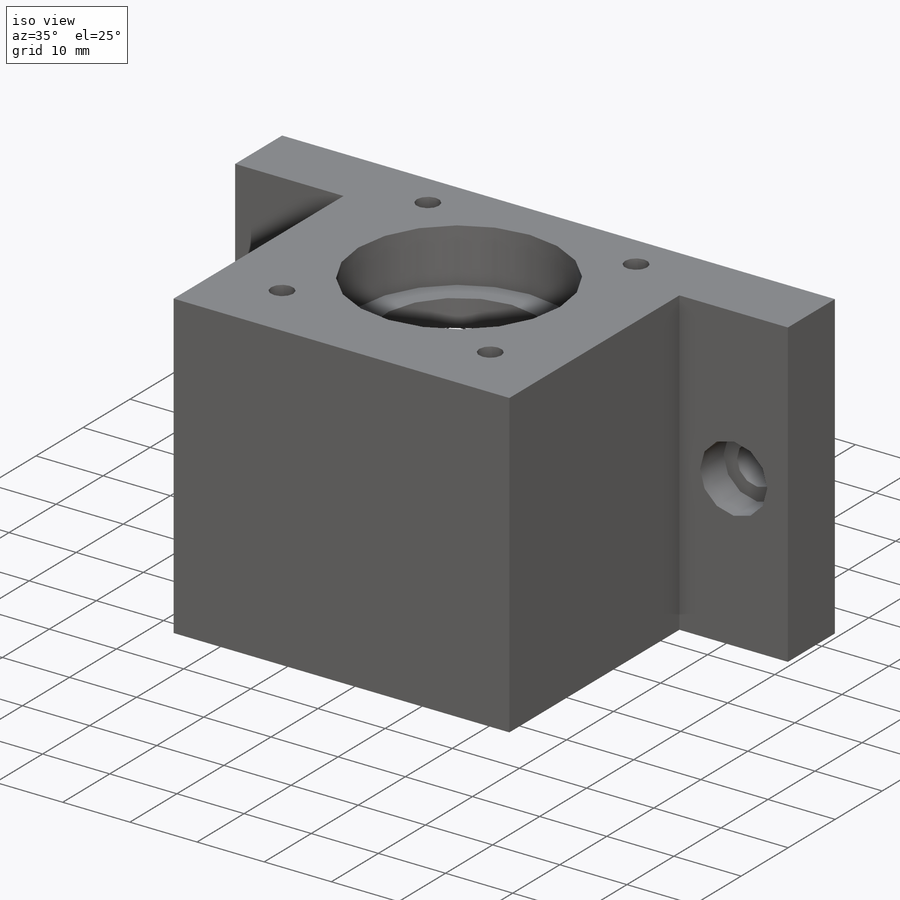
[diagram: iso view]
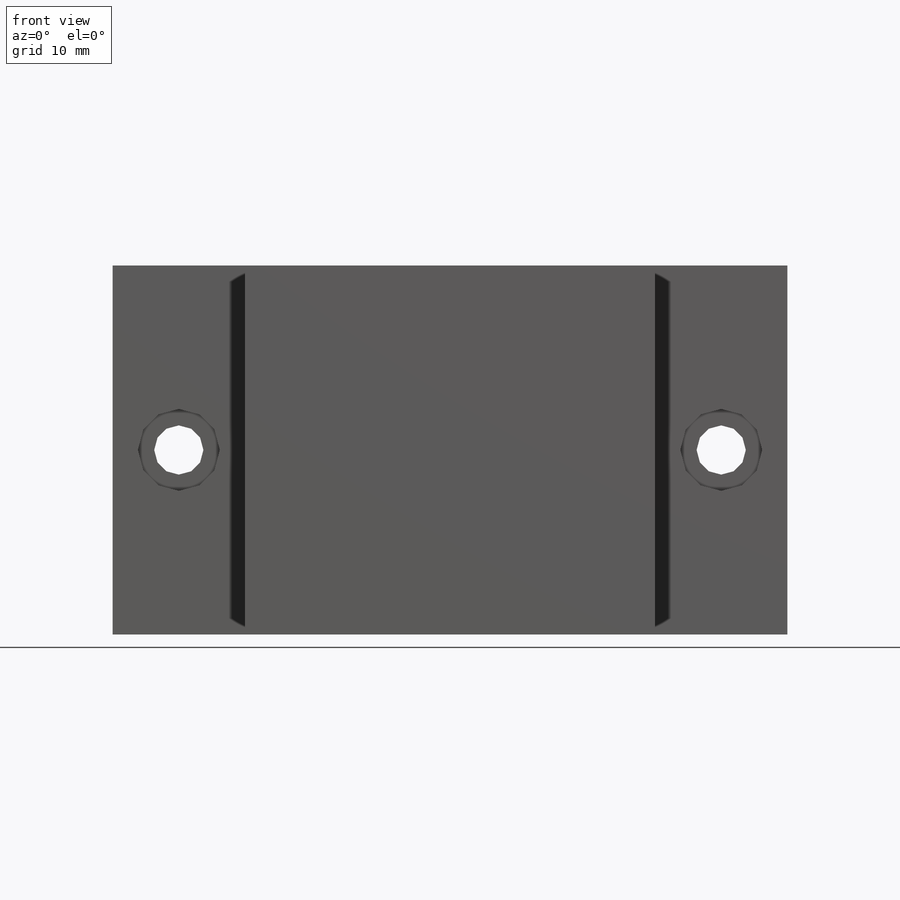
[diagram: front view]
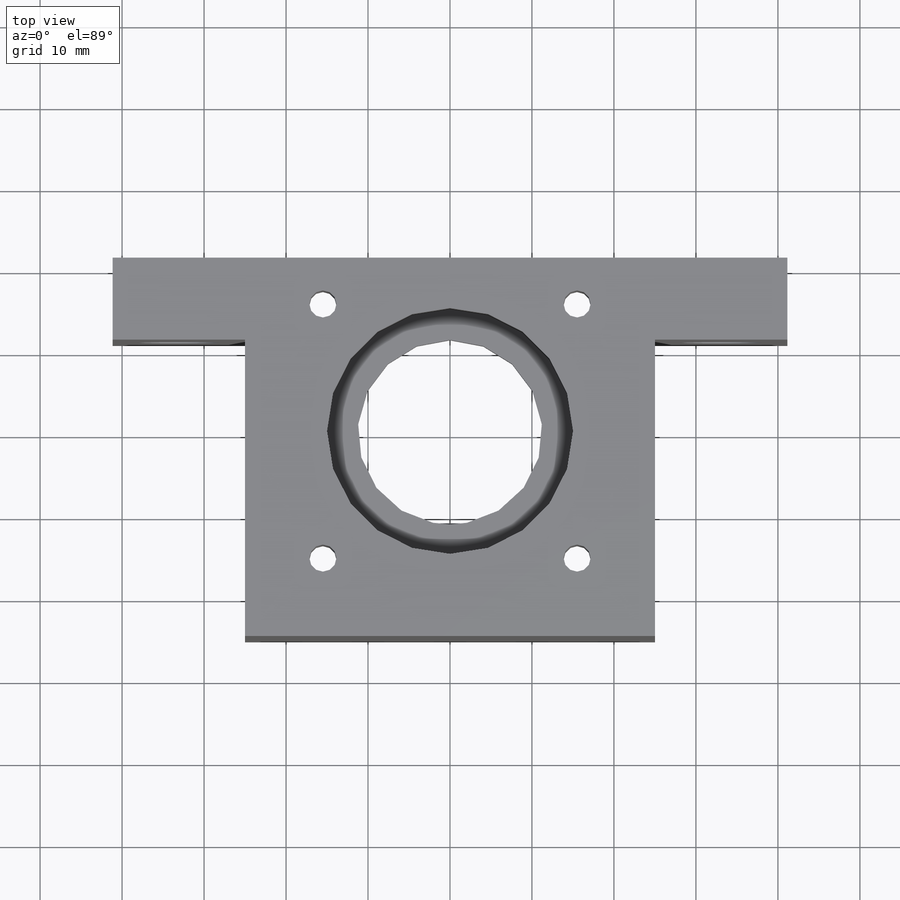
[diagram: top view]
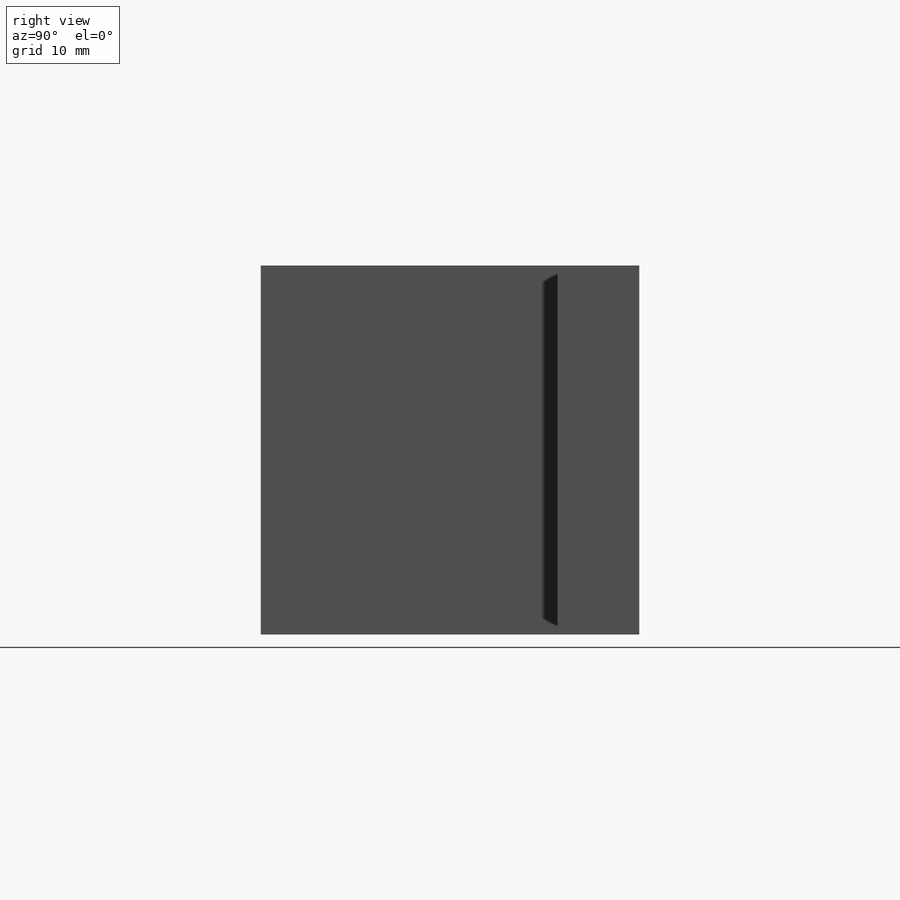
[diagram: right view]
SOLIDWORKS PART (.sldprt)
format: sldprt  version: not decoded by parser v0  size: 286,720 bytes
history: native  units: mm
features: sketch x7, cut_extrude x6, plane x3, material x1, extrude x1 (+9 scaffold rows collapsed)
feature tree (27):
  scaffold x9  (default folders/planes/origin — collapsed)
  material  "Материал <не указан>"
  plane  "Спереди"
  plane  "Сверху"
  plane  "Справа"
  sketch  "Эскиз1"  dims[c1.D1=42.3mm c1.D2=42.3mm c2.D1=42.3mm c2.D2=20.0mm c2.D3=20.0mm c2.D4=10.0mm c2.D5=20.0mm c2.D6=10.0mm c2.D7=~1.22935mm c3.D2=50.0mm c3.D7=50.0mm c4.D2=50.0mm]
  extrude  "Бобышка-Вытянуть1"  Depth=45mm
  sketch  "Эскиз2"  dims[c1.D1=43.0mm c1.D2=43.0mm c2.D1=43.0mm]
  cut_extrude  "Вырез-Вытянуть1"  Depth=33mm
  sketch  "Эскиз3"  dims[D1=22.5mm]
  cut_extrude  "Вырез-Вытянуть2"  [1 undecoded]
  sketch  "Эскиз4"  dims[c1.D2=3.3mm c1.D3=3.3mm c1.D4=3.3mm c1.D5=3.3mm c1.D1=31.0mm c2.D2=31.0mm c2.D1=31.0mm]
  cut_extrude  "Вырез-Вытянуть3"  [1 undecoded]
  sketch  "Эскиз5"  dims[D1=6.0mm D2=6.0mm]
  cut_extrude  "Вырез-Вытянуть4"  [1 undecoded]
  sketch  "Эскиз6"  dims[D1=10.0mm D2=10.0mm]
  cut_extrude  "Вырез-Вытянуть5"  Depth=5mm
  sketch  "Эскиз7"  dims[D1=30.0mm]
  cut_extrude  "Вырез-Вытянуть6"  Depth=8mm
decode coverage: 11 of 14 modeling features carry decoded parameters
note: ~ marks probable driven/reference dimensions
note: 3 parameter values undecoded
summary: no parameter record found for 3 features
note: suppression state not decoded; provenance and decode notes live in map.json
